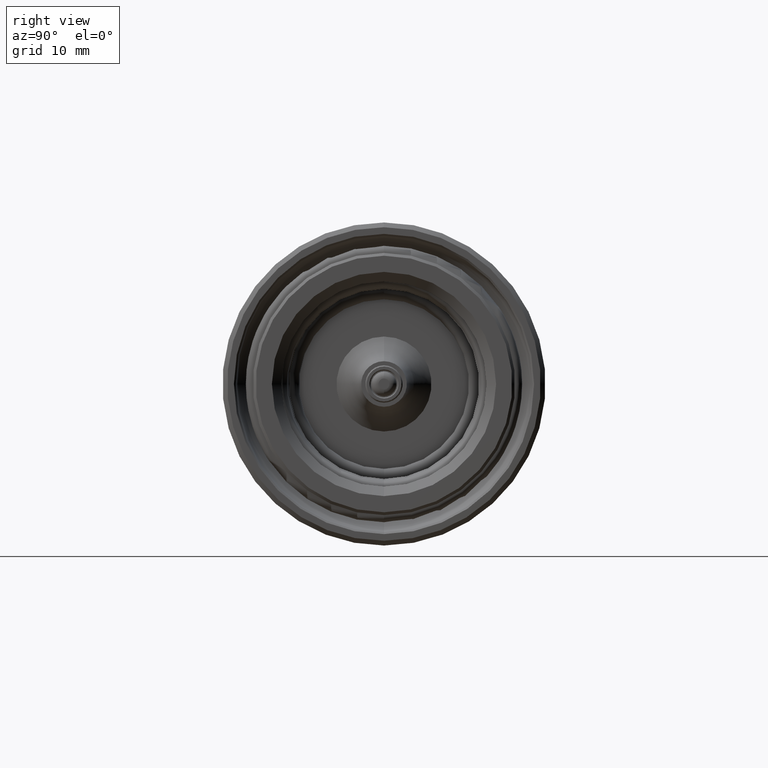
[diagram: clean part render]
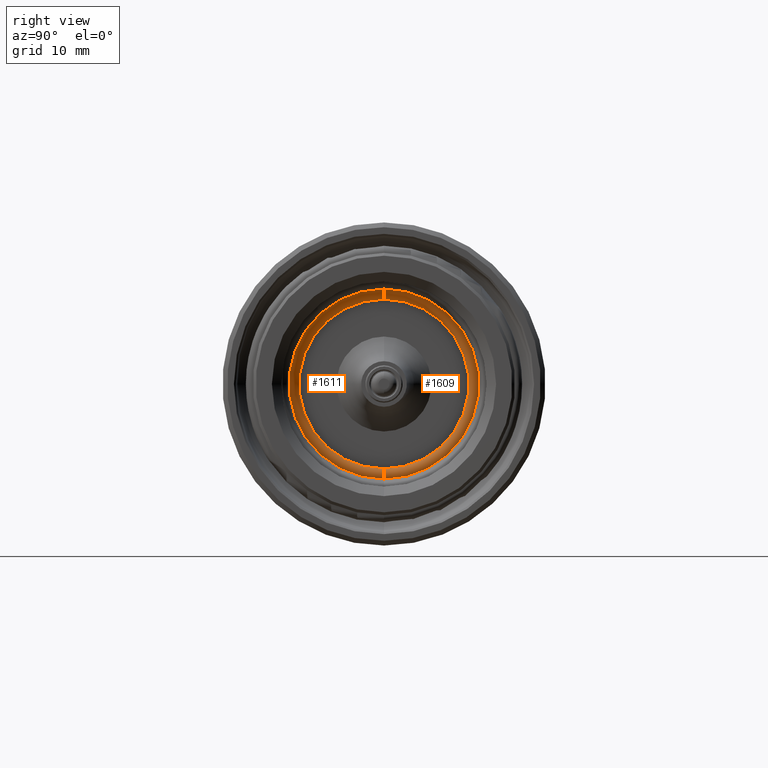
[diagram: same view with one multi-face feature highlighted, each face labeled with its STEP entity id]
A machine part, right view. The highlighted faces form ONE feature: a constant-radius fillet chain: 2 tangent blend faces with common blend radius 1.31 mm. The faces share edges in the B-rep.
Their STEP definitions:
[1] entity #1609 (Torus):
#413 = DIRECTION ( 'NONE',  ( 0.0000000000000000000, 0.0000000000000000000, -1.000000000000000000 ) ) ;
#414 = DIRECTION ( 'NONE',  ( 0.0000000000000000000, -1.000000000000000000, 0.0000000000000000000 ) ) ;
#415 = CARTESIAN_POINT ( 'NONE',  ( 37.80999999998550000, 0.0000000000000000000, 10.23999999999933900 ) ) ;
#430 = DIRECTION ( 'NONE',  ( 0.0000000000000000000, -1.224646799147353000E-016, 1.000000000000000000 ) ) ;
#431 = DIRECTION ( 'NONE',  ( 0.0000000000000000000, 1.000000000000000000, 1.224646799147353200E-016 ) ) ;
#432 = CARTESIAN_POINT ( 'NONE',  ( 37.80999999998550000, 1.254038322326808800E-015, -10.23999999999933900 ) ) ;
#468 = AXIS2_PLACEMENT_3D ( 'NONE', #3495, #3461, #3235 ) ;
#521 = AXIS2_PLACEMENT_3D ( 'NONE', #1898, #1896, #1895 ) ;
#522 = AXIS2_PLACEMENT_3D ( 'NONE', #1891, #1890, #1888 ) ;
#540 = AXIS2_PLACEMENT_3D ( 'NONE', #432, #431, #430 ) ;
#545 = AXIS2_PLACEMENT_3D ( 'NONE', #415, #414, #413 ) ;
#618 = EDGE_LOOP ( 'NONE', ( #858, #862, #854, #863 ) ) ;
#854 = ORIENTED_EDGE ( 'NONE', *, *, #4277, .T. ) ;
#858 = ORIENTED_EDGE ( 'NONE', *, *, #4283, .F. ) ;
#862 = ORIENTED_EDGE ( 'NONE', *, *, #4242, .T. ) ;
#863 = ORIENTED_EDGE ( 'NONE', *, *, #4241, .F. ) ;
#1351 = CARTESIAN_POINT ( 'NONE',  ( 39.11999999998550200, 1.254038322326807600E-015, -10.23999999999932900 ) ) ;
#1527 = CIRCLE ( 'NONE', #540, 1.310000000000000500 ) ;
#1565 = CIRCLE ( 'NONE', #545, 1.310000000000000500 ) ;
#1609 = ADVANCED_FACE ( 'NONE', ( #4519 ), #4526, .T. ) ;
#1772 = VERTEX_POINT ( 'NONE', #1351 ) ;
#1888 = DIRECTION ( 'NONE',  ( 0.0000000000000000000, 0.0000000000000000000, 1.000000000000000000 ) ) ;
#1890 = DIRECTION ( 'NONE',  ( -1.000000000000000000, 0.0000000000000000000, 0.0000000000000000000 ) ) ;
#1891 = CARTESIAN_POINT ( 'NONE',  ( 37.80999999998550000, 0.0000000000000000000, 0.0000000000000000000 ) ) ;
#1895 = DIRECTION ( 'NONE',  ( 0.0000000000000000000, 0.0000000000000000000, 1.000000000000000000 ) ) ;
#1896 = DIRECTION ( 'NONE',  ( -1.000000000000000000, 0.0000000000000000000, 0.0000000000000000000 ) ) ;
#1898 = CARTESIAN_POINT ( 'NONE',  ( 39.11999999998550200, 0.0000000000000000000, 0.0000000000000000000 ) ) ;
#2009 = CIRCLE ( 'NONE', #522, 8.929999999999338900 ) ;
#2016 = CIRCLE ( 'NONE', #521, 10.23999999999932200 ) ;
#2103 = CARTESIAN_POINT ( 'NONE',  ( 37.80999999998550000, 0.0000000000000000000, 8.929999999999338900 ) ) ;
#2652 = CARTESIAN_POINT ( 'NONE',  ( 39.11999999998550200, 0.0000000000000000000, 10.23999999999932900 ) ) ;
#2677 = CARTESIAN_POINT ( 'NONE',  ( 37.80999999998550000, 1.093609591638505600E-015, -8.929999999999338900 ) ) ;
#3183 = VERTEX_POINT ( 'NONE', #2677 ) ;
#3220 = VERTEX_POINT ( 'NONE', #2652 ) ;
#3235 = DIRECTION ( 'NONE',  ( 0.0000000000000000000, 0.0000000000000000000, 1.000000000000000000 ) ) ;
#3385 = VERTEX_POINT ( 'NONE', #2103 ) ;
#3461 = DIRECTION ( 'NONE',  ( -1.000000000000000000, 0.0000000000000000000, 0.0000000000000000000 ) ) ;
#3495 = CARTESIAN_POINT ( 'NONE',  ( 37.80999999998550000, 0.0000000000000000000, 0.0000000000000000000 ) ) ;
#4241 = EDGE_CURVE ( 'NONE', #3220, #1772, #2016, .T. ) ;
#4242 = EDGE_CURVE ( 'NONE', #3385, #3183, #2009, .T. ) ;
#4277 = EDGE_CURVE ( 'NONE', #3183, #1772, #1527, .T. ) ;
#4283 = EDGE_CURVE ( 'NONE', #3385, #3220, #1565, .T. ) ;
#4519 = FACE_OUTER_BOUND ( 'NONE', #618, .T. ) ;
#4526 = TOROIDAL_SURFACE ( 'NONE', #468, 10.23999999999933900, 1.310000000000000100 ) ;
[2] entity #1611 (Torus):
#413 = DIRECTION ( 'NONE',  ( 0.0000000000000000000, 0.0000000000000000000, -1.000000000000000000 ) ) ;
#414 = DIRECTION ( 'NONE',  ( 0.0000000000000000000, -1.000000000000000000, 0.0000000000000000000 ) ) ;
#415 = CARTESIAN_POINT ( 'NONE',  ( 37.80999999998550000, 0.0000000000000000000, 10.23999999999933900 ) ) ;
#421 = DIRECTION ( 'NONE',  ( 0.0000000000000000000, 0.0000000000000000000, 1.000000000000000000 ) ) ;
#422 = DIRECTION ( 'NONE',  ( -1.000000000000000000, 0.0000000000000000000, 0.0000000000000000000 ) ) ;
#423 = CARTESIAN_POINT ( 'NONE',  ( 39.11999999998550200, 0.0000000000000000000, 0.0000000000000000000 ) ) ;
#430 = DIRECTION ( 'NONE',  ( 0.0000000000000000000, -1.224646799147353000E-016, 1.000000000000000000 ) ) ;
#431 = DIRECTION ( 'NONE',  ( 0.0000000000000000000, 1.000000000000000000, 1.224646799147353200E-016 ) ) ;
#432 = CARTESIAN_POINT ( 'NONE',  ( 37.80999999998550000, 1.254038322326808800E-015, -10.23999999999933900 ) ) ;
#433 = DIRECTION ( 'NONE',  ( 0.0000000000000000000, 0.0000000000000000000, 1.000000000000000000 ) ) ;
#434 = DIRECTION ( 'NONE',  ( -1.000000000000000000, 0.0000000000000000000, 0.0000000000000000000 ) ) ;
#435 = CARTESIAN_POINT ( 'NONE',  ( 37.80999999998550000, 0.0000000000000000000, 0.0000000000000000000 ) ) ;
#539 = AXIS2_PLACEMENT_3D ( 'NONE', #435, #434, #433 ) ;
#540 = AXIS2_PLACEMENT_3D ( 'NONE', #432, #431, #430 ) ;
#543 = AXIS2_PLACEMENT_3D ( 'NONE', #423, #422, #421 ) ;
#545 = AXIS2_PLACEMENT_3D ( 'NONE', #415, #414, #413 ) ;
#814 = ORIENTED_EDGE ( 'NONE', *, *, #4280, .F. ) ;
#817 = ORIENTED_EDGE ( 'NONE', *, *, #4283, .T. ) ;
#819 = ORIENTED_EDGE ( 'NONE', *, *, #4277, .F. ) ;
#857 = ORIENTED_EDGE ( 'NONE', *, *, #4276, .T. ) ;
#911 = EDGE_LOOP ( 'NONE', ( #819, #857, #817, #814 ) ) ;
#1351 = CARTESIAN_POINT ( 'NONE',  ( 39.11999999998550200, 1.254038322326807600E-015, -10.23999999999932900 ) ) ;
#1526 = CIRCLE ( 'NONE', #543, 10.23999999999932200 ) ;
#1527 = CIRCLE ( 'NONE', #540, 1.310000000000000500 ) ;
#1562 = CIRCLE ( 'NONE', #539, 8.929999999999338900 ) ;
#1565 = CIRCLE ( 'NONE', #545, 1.310000000000000500 ) ;
#1611 = ADVANCED_FACE ( 'NONE', ( #4336 ), #4357, .T. ) ;
#1772 = VERTEX_POINT ( 'NONE', #1351 ) ;
#2103 = CARTESIAN_POINT ( 'NONE',  ( 37.80999999998550000, 0.0000000000000000000, 8.929999999999338900 ) ) ;
#2436 = AXIS2_PLACEMENT_3D ( 'NONE', #2834, #3341, #3344 ) ;
#2652 = CARTESIAN_POINT ( 'NONE',  ( 39.11999999998550200, 0.0000000000000000000, 10.23999999999932900 ) ) ;
#2677 = CARTESIAN_POINT ( 'NONE',  ( 37.80999999998550000, 1.093609591638505600E-015, -8.929999999999338900 ) ) ;
#2834 = CARTESIAN_POINT ( 'NONE',  ( 37.80999999998550000, 0.0000000000000000000, 0.0000000000000000000 ) ) ;
#3183 = VERTEX_POINT ( 'NONE', #2677 ) ;
#3220 = VERTEX_POINT ( 'NONE', #2652 ) ;
#3341 = DIRECTION ( 'NONE',  ( -1.000000000000000000, 0.0000000000000000000, 0.0000000000000000000 ) ) ;
#3344 = DIRECTION ( 'NONE',  ( 0.0000000000000000000, 0.0000000000000000000, 1.000000000000000000 ) ) ;
#3385 = VERTEX_POINT ( 'NONE', #2103 ) ;
#4276 = EDGE_CURVE ( 'NONE', #3183, #3385, #1562, .T. ) ;
#4277 = EDGE_CURVE ( 'NONE', #3183, #1772, #1527, .T. ) ;
#4280 = EDGE_CURVE ( 'NONE', #1772, #3220, #1526, .T. ) ;
#4283 = EDGE_CURVE ( 'NONE', #3385, #3220, #1565, .T. ) ;
#4336 = FACE_OUTER_BOUND ( 'NONE', #911, .T. ) ;
#4357 = TOROIDAL_SURFACE ( 'NONE', #2436, 10.23999999999933900, 1.310000000000000100 ) ;